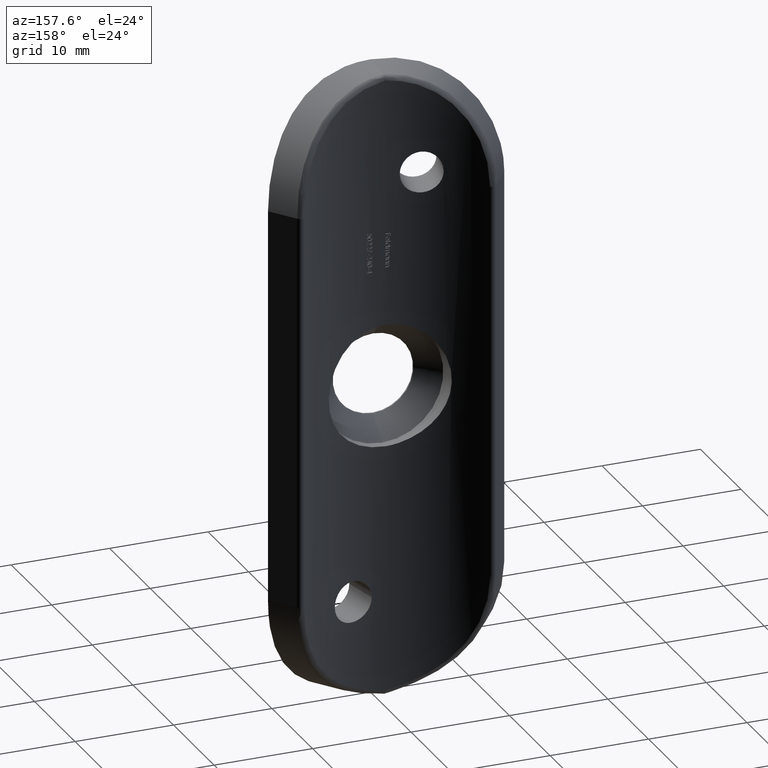
[diagram: clean part render]
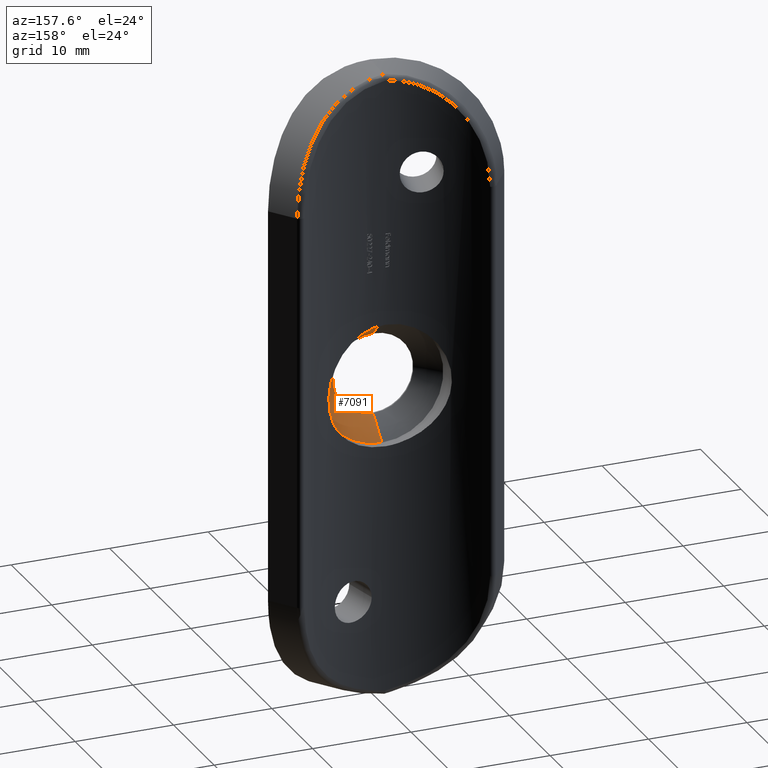
[diagram: same view with one face highlighted and labeled with its STEP entity id]
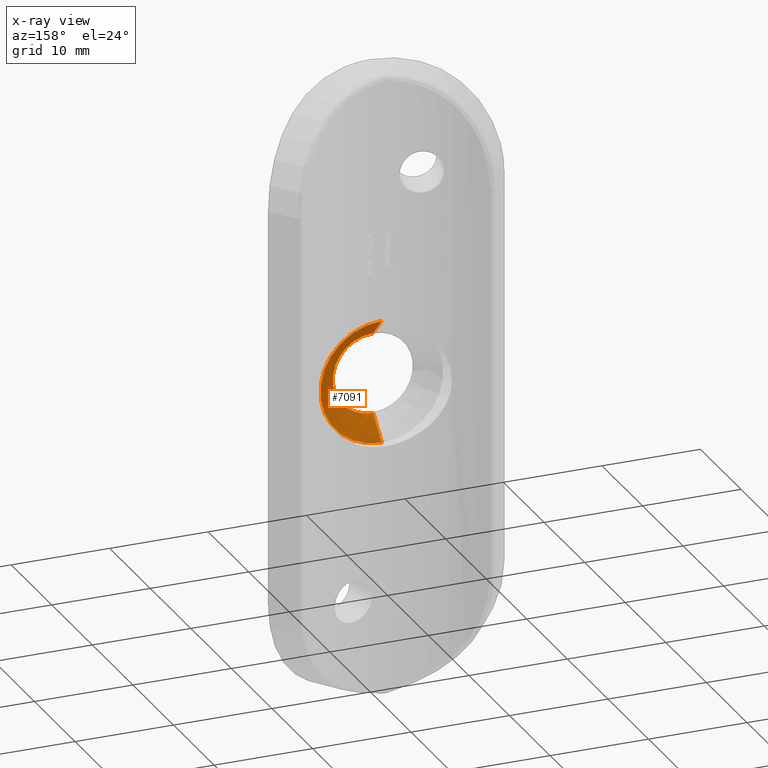
[diagram: x-ray of the same camera — body ghosted, the highlighted face saturated]
A machine part, auxiliary view. The second image highlights one B-rep face of the part: STEP entity #7091.
The next image is the same camera in x-ray: the body ghosted, the highlighted face saturated — about 0% of this face is hidden behind the body in this view.
In plain terms, the highlighted conical surface has half-angle 45 deg.
Its self-contained STEP definition (entity closure, byte-faithful):
#163 = FACE_OUTER_BOUND ( 'NONE', #11841, .T. ) ;
#770 = CIRCLE ( 'NONE', #9675, 4.099999999999999645 ) ;
#1398 = AXIS2_PLACEMENT_3D ( 'NONE', #2341, #7387, #9374 ) ;
#1492 = VERTEX_POINT ( 'NONE', #11056 ) ;
#1864 = ORIENTED_EDGE ( 'NONE', *, *, #1988, .T. ) ;
#1988 = EDGE_CURVE ( 'NONE', #11609, #11619, #2413, .T. ) ;
#2341 = CARTESIAN_POINT ( 'NONE',  ( 0.000000000000000000, 2.800000000000000266, 0.000000000000000000 ) ) ;
#2413 = LINE ( 'NONE', #8255, #10596 ) ;
#2868 = ORIENTED_EDGE ( 'NONE', *, *, #5936, .F. ) ;
#4537 = EDGE_CURVE ( 'NONE', #1492, #11137, #8209, .T. ) ;
#4552 = DIRECTION ( 'NONE',  ( 0.000000000000000000, 0.000000000000000000, 1.000000000000000000 ) ) ;
#4778 = CARTESIAN_POINT ( 'NONE',  ( 5.021051876504147385E-16, 0.6499999999999734879, -4.099999999999999645 ) ) ;
#5634 = DIRECTION ( 'NONE',  ( 0.000000000000000000, 1.000000000000000000, 0.000000000000000000 ) ) ;
#5936 = EDGE_CURVE ( 'NONE', #11137, #11619, #11483, .T. ) ;
#6277 = DIRECTION ( 'NONE',  ( 0.000000000000000000, 0.7071067811865515695, 0.7071067811865435759 ) ) ;
#6558 = CARTESIAN_POINT ( 'NONE',  ( 0.000000000000000000, 0.6499999999999734879, 0.000000000000000000 ) ) ;
#6757 = CONICAL_SURFACE ( 'NONE', #11829, 4.099999999999999645, 0.7853981633974426169 ) ;
#6797 = VECTOR ( 'NONE', #7609, 999.9999999999998863 ) ;
#7091 = ADVANCED_FACE ( 'NONE', ( #163 ), #6757, .F. ) ;
#7387 = DIRECTION ( 'NONE',  ( -0.000000000000000000, -1.000000000000000000, -0.000000000000000000 ) ) ;
#7521 = CARTESIAN_POINT ( 'NONE',  ( 0.000000000000000000, 0.6499999999999734879, 0.000000000000000000 ) ) ;
#7609 = DIRECTION ( 'NONE',  ( 8.659560562354884787E-17, 0.7071067811865515695, -0.7071067811865435759 ) ) ;
#7618 = CARTESIAN_POINT ( 'NONE',  ( 7.654042494670960565E-16, 2.800000000000000266, 6.250000000000002665 ) ) ;
#8209 = LINE ( 'NONE', #4778, #6797 ) ;
#8255 = CARTESIAN_POINT ( 'NONE',  ( 0.000000000000000000, 0.6499999999999734879, 4.099999999999999645 ) ) ;
#8375 = ORIENTED_EDGE ( 'NONE', *, *, #4537, .F. ) ;
#9374 = DIRECTION ( 'NONE',  ( 0.000000000000000000, 0.000000000000000000, -1.000000000000000000 ) ) ;
#9461 = EDGE_CURVE ( 'NONE', #1492, #11609, #770, .T. ) ;
#9648 = DIRECTION ( 'NONE',  ( 0.000000000000000000, 0.000000000000000000, -1.000000000000000000 ) ) ;
#9675 = AXIS2_PLACEMENT_3D ( 'NONE', #6558, #11598, #9648 ) ;
#10061 = ORIENTED_EDGE ( 'NONE', *, *, #9461, .T. ) ;
#10596 = VECTOR ( 'NONE', #6277, 999.9999999999998863 ) ;
#11056 = CARTESIAN_POINT ( 'NONE',  ( 6.337547185587552989E-16, 0.6499999999999734879, -4.099999999999999645 ) ) ;
#11137 = VERTEX_POINT ( 'NONE', #12551 ) ;
#11483 = CIRCLE ( 'NONE', #1398, 6.250000000000001776 ) ;
#11598 = DIRECTION ( 'NONE',  ( -0.000000000000000000, -1.000000000000000000, -0.000000000000000000 ) ) ;
#11609 = VERTEX_POINT ( 'NONE', #12803 ) ;
#11619 = VERTEX_POINT ( 'NONE', #7618 ) ;
#11829 = AXIS2_PLACEMENT_3D ( 'NONE', #7521, #5634, #4552 ) ;
#11841 = EDGE_LOOP ( 'NONE', ( #8375, #10061, #1864, #2868 ) ) ;
#12551 = CARTESIAN_POINT ( 'NONE',  ( 0.000000000000000000, 2.800000000000000266, -6.250000000000001776 ) ) ;
#12803 = CARTESIAN_POINT ( 'NONE',  ( 0.000000000000000000, 0.6499999999999734879, 4.099999999999999645 ) ) ;